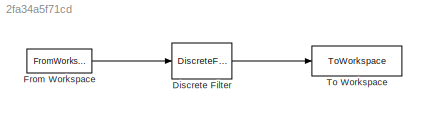
MODEL slx_2fa34a5f71cd
KIND model
CONFIG AbsTol = auto
CONFIG EnableMultiTasking = off
CONFIG FixedStep = auto
CONFIG MaxStep = auto
CONFIG MinStep = auto
CONFIG RelTol = 1e-3
CONFIG SampleTimeConstraint = Unconstrained
CONFIG Solver = VariableStepAuto
CONFIG SolverName = VariableStepAuto
CONFIG StartTime = 0.0
CONFIG StopTime = 10.0
BLOCK [DiscreteFilter] Discrete Filter
  Denominator = CoefY
  InputPortMap = u0
  Numerator = CoefU
  Ports = [1, 1]
BLOCK [FromWorkspace] From Workspace
  SampleTime = 1/250
  VariableName = Data2Filter
  ZeroCross = on
BLOCK [ToWorkspace] To Workspace
  FixptAsFi = on
  MaxDataPoints = inf
  Ports = [1]
  SampleTime = 1/250
  VariableName = SimFilteredData
LINE Discrete Filter:1 -> To Workspace:1
LINE From Workspace:1 -> Discrete Filter:1
